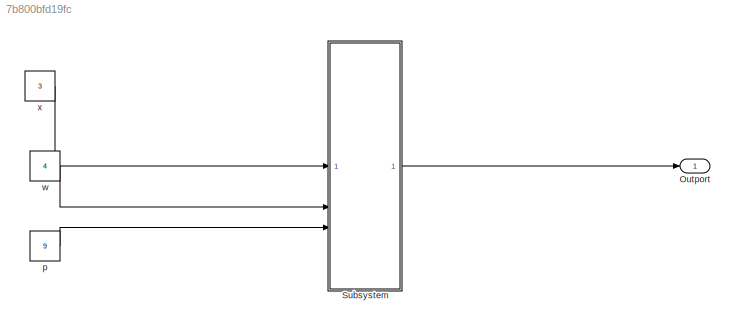
MODEL slx_7b800bfd19fc
KIND model
CONFIG AbsTol = auto
CONFIG EnableMultiTasking = off
CONFIG FixedStep = auto
CONFIG MaxStep = auto
CONFIG MinStep = auto
CONFIG RelTol = 1e-3
CONFIG SampleTimeConstraint = Unconstrained
CONFIG SolverName = VariableStepAuto
CONFIG StartTime = 0.0
CONFIG StopTime = 10
BLOCK [Outport] Outport
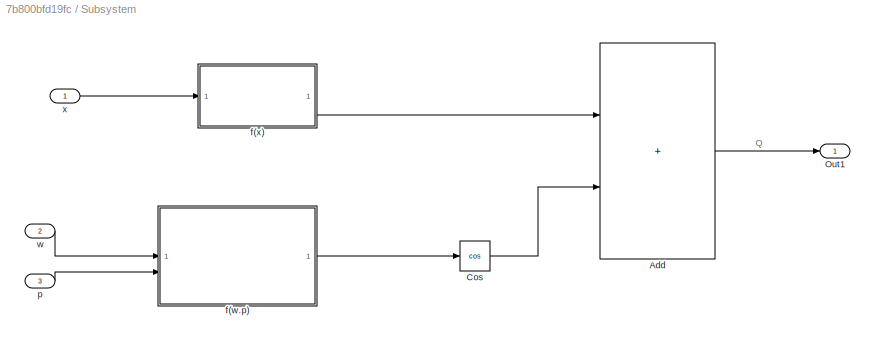
BLOCK [SubSystem] Subsystem
BLOCK [Sum] Subsystem/Add
  IconShape = rectangular
BLOCK [Trigonometry] Subsystem/Cos
  Operator = cos
BLOCK [Outport] Subsystem/Out1
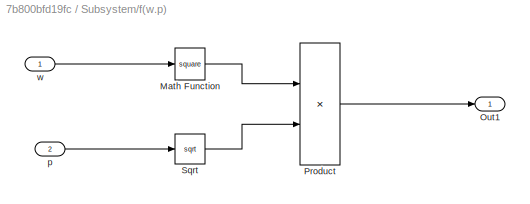
BLOCK [SubSystem] Subsystem/f(w.p)
BLOCK [Math] Subsystem/f(w.p)/Math Function
  Operator = square
BLOCK [Outport] Subsystem/f(w.p)/Out1
BLOCK [Product] Subsystem/f(w.p)/Product
BLOCK [Sqrt] Subsystem/f(w.p)/Sqrt
BLOCK [Inport] Subsystem/f(w.p)/p
  Port = 2
BLOCK [Inport] Subsystem/f(w.p)/w
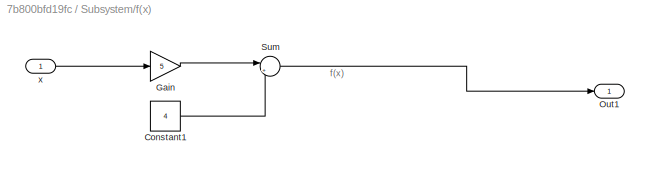
BLOCK [SubSystem] Subsystem/f(x)
BLOCK [Constant] Subsystem/f(x)/Constant1
  Value = 4
BLOCK [Gain] Subsystem/f(x)/Gain
  Gain = 5
BLOCK [Outport] Subsystem/f(x)/Out1
BLOCK [Sum] Subsystem/f(x)/Sum
  Inputs = |++
BLOCK [Inport] Subsystem/f(x)/x
BLOCK [Inport] Subsystem/p
  Port = 3
BLOCK [Inport] Subsystem/w
  Port = 2
BLOCK [Inport] Subsystem/x
BLOCK [Constant] p
  Value = 9
BLOCK [Constant] w
  Value = 4
BLOCK [Constant] x
  Value = 3
ANNOTATION Subsystem: Q
ANNOTATION Subsystem/f(x): f(x)
LINE Subsystem/Add:1 -> Subsystem/Out1:1
LINE Subsystem/Cos:1 -> Subsystem/Add:2
LINE Subsystem/f(w.p)/Math Function:1 -> Subsystem/f(w.p)/Product:1
LINE Subsystem/f(w.p)/Product:1 -> Subsystem/f(w.p)/Out1:1
LINE Subsystem/f(w.p)/Sqrt:1 -> Subsystem/f(w.p)/Product:2
LINE Subsystem/f(w.p)/p:1 -> Subsystem/f(w.p)/Sqrt:1
LINE Subsystem/f(w.p)/w:1 -> Subsystem/f(w.p)/Math Function:1
LINE Subsystem/f(w.p):1 -> Subsystem/Cos:1
LINE Subsystem/f(x)/Constant1:1 -> Subsystem/f(x)/Sum:2
LINE Subsystem/f(x)/Gain:1 -> Subsystem/f(x)/Sum:1
LINE Subsystem/f(x)/Sum:1 -> Subsystem/f(x)/Out1:1
LINE Subsystem/f(x)/x:1 -> Subsystem/f(x)/Gain:1
LINE Subsystem/f(x):1 -> Subsystem/Add:1
LINE Subsystem/p:1 -> Subsystem/f(w.p):2
LINE Subsystem/w:1 -> Subsystem/f(w.p):1
LINE Subsystem/x:1 -> Subsystem/f(x):1
LINE Subsystem:1 -> Outport:1
LINE p:1 -> Subsystem:3
LINE w:1 -> Subsystem:2
LINE x:1 -> Subsystem:1
